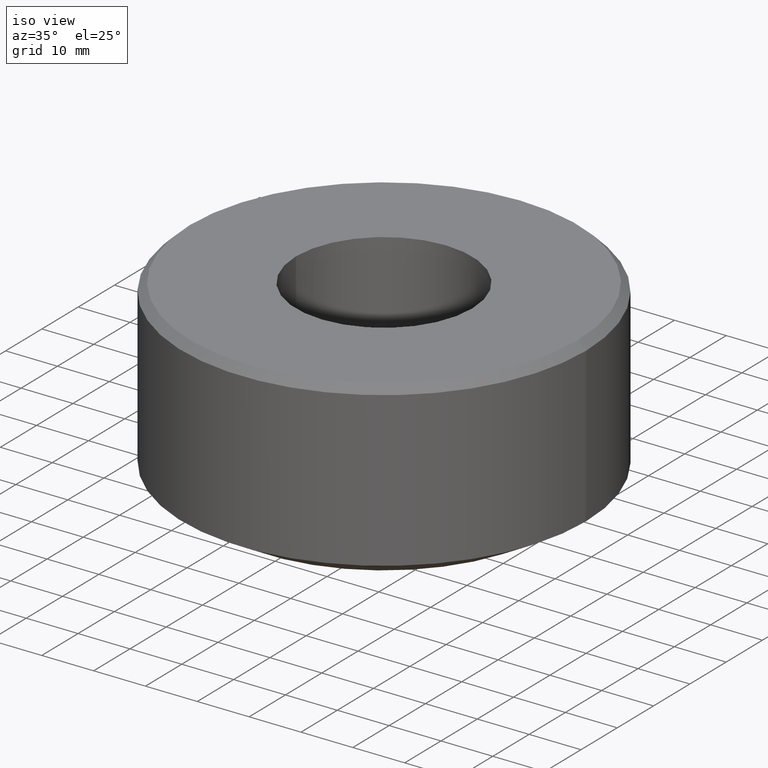
[diagram: clean part render]
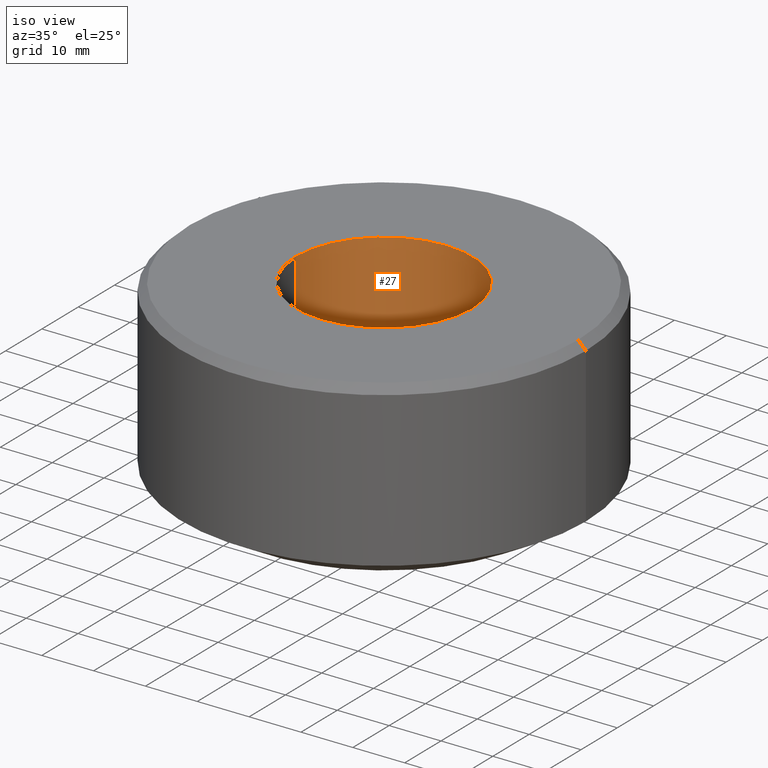
[diagram: same view with one face highlighted and labeled with its STEP entity id]
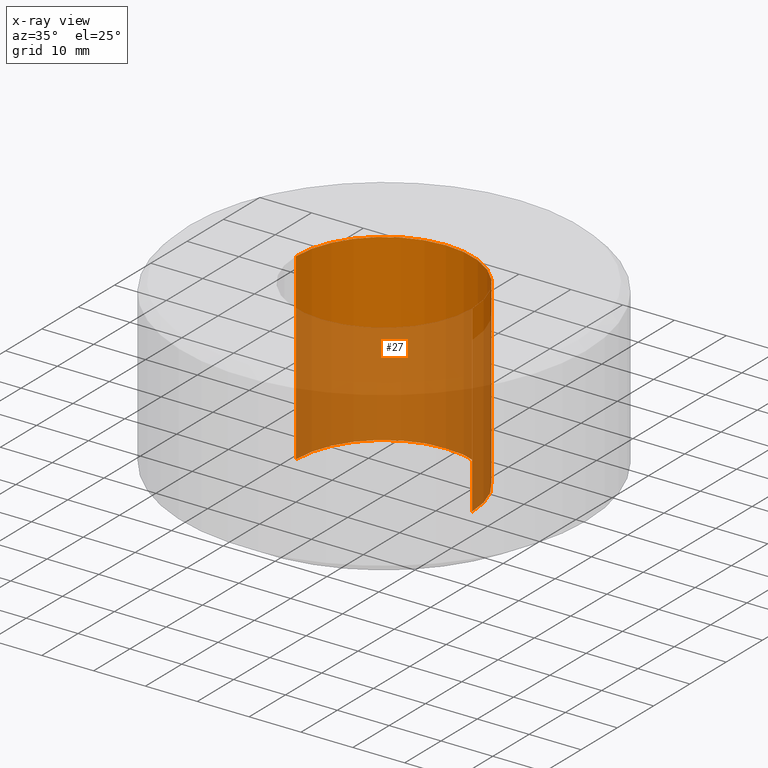
[diagram: x-ray of the same camera — body ghosted, the highlighted face saturated]
A machine part, iso view. The second image highlights one B-rep face of the part: STEP entity #27.
The next image is the same camera in x-ray: the body ghosted, the highlighted face saturated — about 62% of this face is hidden behind the body in this view.
In plain terms, the highlighted cylindrical surface (partial cylindrical patch) has radius 17 mm, axis along (-0, -0, 1).
Its self-contained STEP definition (entity closure, byte-faithful):
#1 = DIRECTION ( 'NONE',  ( -0.0000000000000000000, -0.0000000000000000000, 1.000000000000000000 ) ) ;
#8 = LINE ( 'NONE', #252, #223 ) ;
#15 = DIRECTION ( 'NONE',  ( -0.0000000000000000000, -0.0000000000000000000, 1.000000000000000000 ) ) ;
#27 = ADVANCED_FACE ( 'NONE', ( #137 ), #42, .F. ) ;
#40 = CARTESIAN_POINT ( 'NONE',  ( 16.99999999999999600, 0.0000000000000000000, 17.69999999999999900 ) ) ;
#42 = CYLINDRICAL_SURFACE ( 'NONE', #231, 17.00000000000000000 ) ;
#45 = CARTESIAN_POINT ( 'NONE',  ( 0.0000000000000000000, 0.0000000000000000000, 43.26054273766887100 ) ) ;
#52 = VERTEX_POINT ( 'NONE', #97 ) ;
#54 = AXIS2_PLACEMENT_3D ( 'NONE', #118, #310, #152 ) ;
#56 = DIRECTION ( 'NONE',  ( -0.0000000000000000000, -0.0000000000000000000, 1.000000000000000000 ) ) ;
#59 = ORIENTED_EDGE ( 'NONE', *, *, #113, .F. ) ;
#69 = CARTESIAN_POINT ( 'NONE',  ( 17.00000000000000000, 0.0000000000000000000, -17.70000000000000600 ) ) ;
#71 = DIRECTION ( 'NONE',  ( -0.0000000000000000000, -0.0000000000000000000, 1.000000000000000000 ) ) ;
#82 = LINE ( 'NONE', #86, #147 ) ;
#86 = CARTESIAN_POINT ( 'NONE',  ( -17.00000000000000000, 2.081899558550500300E-015, 43.26054273766887100 ) ) ;
#90 = CIRCLE ( 'NONE', #54, 16.99999999999999600 ) ;
#97 = CARTESIAN_POINT ( 'NONE',  ( -17.00000000000000000, 2.081899558550500300E-015, -17.70000000000000600 ) ) ;
#113 = EDGE_CURVE ( 'NONE', #52, #291, #82, .T. ) ;
#118 = CARTESIAN_POINT ( 'NONE',  ( 0.0000000000000000000, 0.0000000000000000000, 17.69999999999999900 ) ) ;
#124 = ORIENTED_EDGE ( 'NONE', *, *, #313, .T. ) ;
#137 = FACE_OUTER_BOUND ( 'NONE', #332, .T. ) ;
#147 = VECTOR ( 'NONE', #56, 1000.000000000000000 ) ;
#152 = DIRECTION ( 'NONE',  ( 1.000000000000000000, 0.0000000000000000000, 0.0000000000000000000 ) ) ;
#155 = AXIS2_PLACEMENT_3D ( 'NONE', #167, #1, #194 ) ;
#163 = EDGE_CURVE ( 'NONE', #208, #291, #90, .T. ) ;
#167 = CARTESIAN_POINT ( 'NONE',  ( 0.0000000000000000000, 0.0000000000000000000, -17.70000000000000600 ) ) ;
#172 = CARTESIAN_POINT ( 'NONE',  ( -16.99999999999999600, 2.081899558550499900E-015, 17.69999999999999900 ) ) ;
#194 = DIRECTION ( 'NONE',  ( 1.000000000000000000, 0.0000000000000000000, 0.0000000000000000000 ) ) ;
#208 = VERTEX_POINT ( 'NONE', #40 ) ;
#209 = DIRECTION ( 'NONE',  ( 1.000000000000000000, 0.0000000000000000000, 0.0000000000000000000 ) ) ;
#223 = VECTOR ( 'NONE', #15, 1000.000000000000000 ) ;
#229 = VERTEX_POINT ( 'NONE', #69 ) ;
#231 = AXIS2_PLACEMENT_3D ( 'NONE', #45, #71, #209 ) ;
#252 = CARTESIAN_POINT ( 'NONE',  ( 17.00000000000000000, 0.0000000000000000000, 43.26054273766887100 ) ) ;
#285 = ORIENTED_EDGE ( 'NONE', *, *, #328, .F. ) ;
#286 = CIRCLE ( 'NONE', #155, 17.00000000000000000 ) ;
#291 = VERTEX_POINT ( 'NONE', #172 ) ;
#304 = ORIENTED_EDGE ( 'NONE', *, *, #163, .T. ) ;
#310 = DIRECTION ( 'NONE',  ( -0.0000000000000000000, -0.0000000000000000000, 1.000000000000000000 ) ) ;
#313 = EDGE_CURVE ( 'NONE', #229, #208, #8, .T. ) ;
#328 = EDGE_CURVE ( 'NONE', #229, #52, #286, .T. ) ;
#332 = EDGE_LOOP ( 'NONE', ( #59, #285, #124, #304 ) ) ;